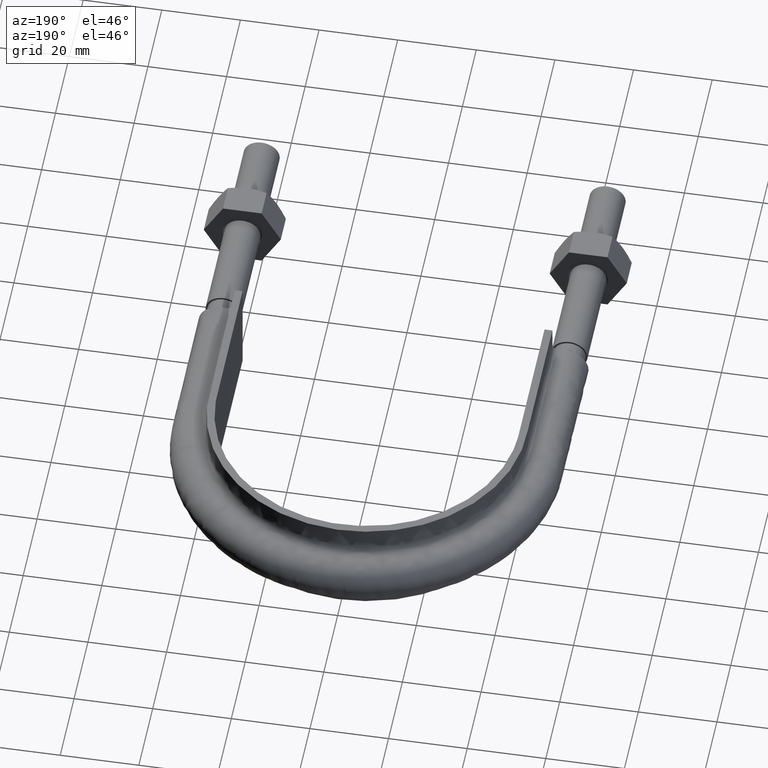
[diagram: clean part render]
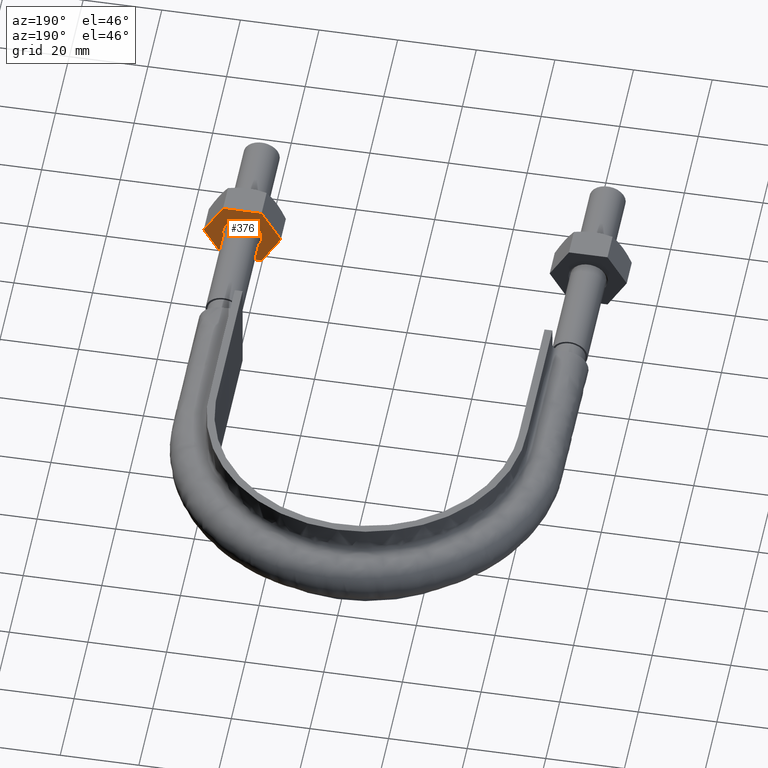
[diagram: same view with one face highlighted and labeled with its STEP entity id]
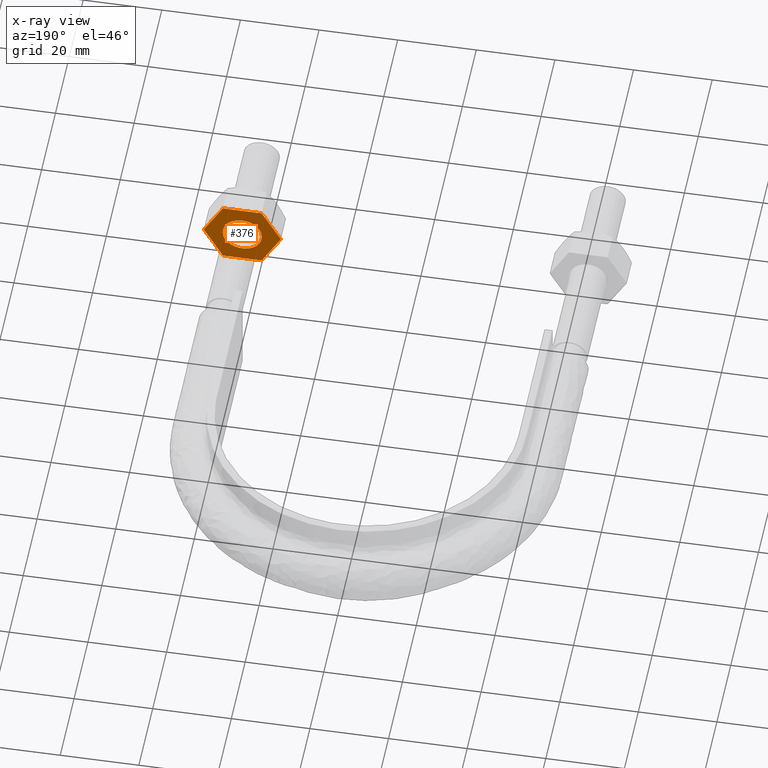
[diagram: x-ray of the same camera — body ghosted, the highlighted face saturated]
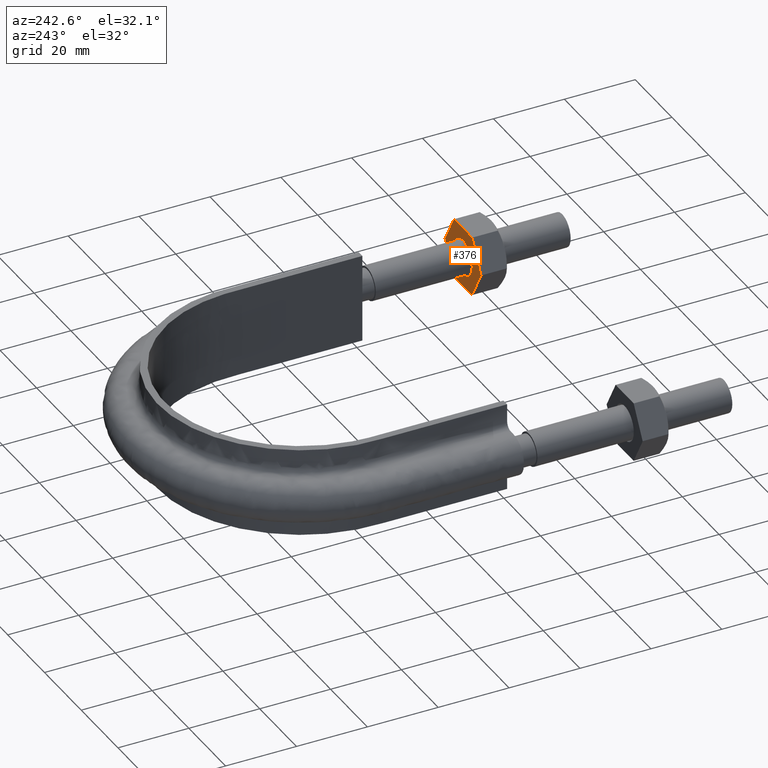
[diagram: same view with one face highlighted and labeled with its STEP entity id]
A machine part, auxiliary view. The second image highlights one B-rep face of the part: STEP entity #376.
The next image is the same camera in x-ray: the body ghosted, the highlighted face saturated — about 0% of this face is hidden behind the body in this view.
A second angle (auxiliary view) of the same face is appended — the face is thin or edge-on in the first view.
In plain terms, the highlighted planar face has unit normal (-0, -1, -0).
Its self-contained STEP definition (entity closure, byte-faithful):
#376 = ADVANCED_FACE( '', ( #530, #531 ), #532, .F. );
#530 = FACE_OUTER_BOUND( '', #1529, .T. );
#531 = FACE_BOUND( '', #1530, .T. );
#532 = PLANE( '', #1531 );
#1529 = EDGE_LOOP( '', ( #1980, #1981, #1982, #1983, #1984, #1985, #1986, #1987, #1988, #1989, #1990, #1991 ) );
#1530 = EDGE_LOOP( '', ( #1992 ) );
#1531 = AXIS2_PLACEMENT_3D( '', #1993, #1994, #1995 );
#1980 = ORIENTED_EDGE( '', *, *, #2231, .T. );
#1981 = ORIENTED_EDGE( '', *, *, #2232, .T. );
#1982 = ORIENTED_EDGE( '', *, *, #2233, .T. );
#1983 = ORIENTED_EDGE( '', *, *, #2217, .T. );
#1984 = ORIENTED_EDGE( '', *, *, #2234, .T. );
#1985 = ORIENTED_EDGE( '', *, *, #2225, .T. );
#1986 = ORIENTED_EDGE( '', *, *, #2221, .T. );
#1987 = ORIENTED_EDGE( '', *, *, #2235, .T. );
#1988 = ORIENTED_EDGE( '', *, *, #2236, .T. );
#1989 = ORIENTED_EDGE( '', *, *, #2237, .T. );
#1990 = ORIENTED_EDGE( '', *, *, #2238, .T. );
#1991 = ORIENTED_EDGE( '', *, *, #2239, .T. );
#1992 = ORIENTED_EDGE( '', *, *, #2229, .F. );
#1993 = CARTESIAN_POINT( '', ( 48.9000000000000, 28.0000000000000, 8.48704895708750 ) );
#1994 = DIRECTION( '', ( -2.44921270764475E-016, -1.00000000000000, -6.12303176911189E-017 ) );
#1995 = DIRECTION( '', ( -1.00000000000000, 2.44921270764475E-016, 0.000000000000000 ) );
#2217 = EDGE_CURVE( '', #2439, #2437, #2440, .T. );
#2221 = EDGE_CURVE( '', #2447, #2445, #2448, .F. );
#2225 = EDGE_CURVE( '', #2454, #2447, #2455, .T. );
#2229 = EDGE_CURVE( '', #2460, #2460, #2461, .F. );
#2231 = EDGE_CURVE( '', #2464, #2465, #2466, .F. );
#2232 = EDGE_CURVE( '', #2465, #2467, #2468, .T. );
#2233 = EDGE_CURVE( '', #2467, #2439, #2469, .F. );
#2234 = EDGE_CURVE( '', #2437, #2454, #2470, .F. );
#2235 = EDGE_CURVE( '', #2445, #2471, #2472, .T. );
#2236 = EDGE_CURVE( '', #2471, #2473, #2474, .F. );
#2237 = EDGE_CURVE( '', #2473, #2475, #2476, .T. );
#2238 = EDGE_CURVE( '', #2475, #2477, #2478, .F. );
#2239 = EDGE_CURVE( '', #2477, #2464, #2479, .T. );
#2437 = VERTEX_POINT( '', #3039 );
#2439 = VERTEX_POINT( '', #3042 );
#2440 = LINE( '', #3043, #3044 );
#2445 = VERTEX_POINT( '', #3050 );
#2447 = VERTEX_POINT( '', #3053 );
#2448 = CIRCLE( '', #3054, 9.80000000000000 );
#2454 = VERTEX_POINT( '', #3071 );
#2455 = LINE( '', #3072, #3073 );
#2460 = VERTEX_POINT( '', #3084 );
#2461 = CIRCLE( '', #3085, 5.00000000000000 );
#2464 = VERTEX_POINT( '', #3088 );
#2465 = VERTEX_POINT( '', #3089 );
#2466 = CIRCLE( '', #3090, 9.80000000000000 );
#2467 = VERTEX_POINT( '', #3091 );
#2468 = LINE( '', #3092, #3093 );
#2469 = CIRCLE( '', #3094, 9.80000000000000 );
#2470 = CIRCLE( '', #3095, 9.80000000000000 );
#2471 = VERTEX_POINT( '', #3096 );
#2472 = LINE( '', #3097, #3098 );
#2473 = VERTEX_POINT( '', #3099 );
#2474 = CIRCLE( '', #3100, 9.80000000000000 );
#2475 = VERTEX_POINT( '', #3101 );
#2476 = LINE( '', #3102, #3103 );
#2477 = VERTEX_POINT( '', #3104 );
#2478 = CIRCLE( '', #3105, 9.80000000000000 );
#2479 = LINE( '', #3106, #3107 );
#3039 = CARTESIAN_POINT( '', ( 39.1225006406971, 28.0000000000000, -8.49999999999999 ) );
#3042 = CARTESIAN_POINT( '', ( 48.8774993593029, 28.0000000000000, -8.49999999999999 ) );
#3043 = CARTESIAN_POINT( '', ( 48.9000000000000, 28.0000000000000, -8.49999999999999 ) );
#3044 = VECTOR( '', #3335, 1000.00000000000 );
#3050 = CARTESIAN_POINT( '', ( 34.2000343881808, 28.0000000000000, 0.0259616479013135 ) );
#3053 = CARTESIAN_POINT( '', ( 34.2000343881808, 28.0000000000000, -0.0259616479013455 ) );
#3054 = AXIS2_PLACEMENT_3D( '', #3341, #3342, #3343 );
#3071 = CARTESIAN_POINT( '', ( 39.0775337474837, 28.0000000000000, -8.47403835209863 ) );
#3072 = CARTESIAN_POINT( '', ( 34.1887840678323, 28.0000000000000, -0.00647552145623814 ) );
#3073 = VECTOR( '', #3345, 1000.00000000000 );
#3084 = CARTESIAN_POINT( '', ( 49.0000000000000, 28.0000000000000, 3.71436822271809E-015 ) );
#3085 = AXIS2_PLACEMENT_3D( '', #3350, #3351, #3352 );
#3088 = CARTESIAN_POINT( '', ( 53.7999656118192, 28.0000000000000, 0.0259616479013590 ) );
#3089 = CARTESIAN_POINT( '', ( 53.7999656118192, 28.0000000000000, -0.0259616479014913 ) );
#3090 = AXIS2_PLACEMENT_3D( '', #3356, #3357, #3358 );
#3091 = CARTESIAN_POINT( '', ( 48.9224662525164, 28.0000000000000, -8.47403835209856 ) );
#3092 = CARTESIAN_POINT( '', ( 56.2612159321678, 28.0000000000000, 4.23704895708748 ) );
#3093 = VECTOR( '', #3359, 1000.00000000000 );
#3094 = AXIS2_PLACEMENT_3D( '', #3360, #3361, #3362 );
#3095 = AXIS2_PLACEMENT_3D( '', #3363, #3364, #3365 );
#3096 = CARTESIAN_POINT( '', ( 39.0775337474838, 28.0000000000000, 8.47403835209866 ) );
#3097 = CARTESIAN_POINT( '', ( 41.5387840678323, 28.0000000000000, 12.7370489570875 ) );
#3098 = VECTOR( '', #3366, 1000.00000000000 );
#3099 = CARTESIAN_POINT( '', ( 39.1225006406971, 28.0000000000000, 8.50000000000000 ) );
#3100 = AXIS2_PLACEMENT_3D( '', #3367, #3368, #3369 );
#3101 = CARTESIAN_POINT( '', ( 48.8774993593029, 28.0000000000000, 8.50000000000000 ) );
#3102 = CARTESIAN_POINT( '', ( 48.9000000000000, 28.0000000000000, 8.50000000000000 ) );
#3103 = VECTOR( '', #3370, 1000.00000000000 );
#3104 = CARTESIAN_POINT( '', ( 48.9224662525163, 28.0000000000000, 8.47403835209863 ) );
#3105 = AXIS2_PLACEMENT_3D( '', #3371, #3372, #3373 );
#3106 = CARTESIAN_POINT( '', ( 48.9112159321677, 28.0000000000000, 8.49352447854374 ) );
#3107 = VECTOR( '', #3374, 1000.00000000000 );
#3335 = DIRECTION( '', ( -1.00000000000000, 2.44921270764475E-016, 2.17945380688007E-032 ) );
#3341 = CARTESIAN_POINT( '', ( 44.0000000000000, 28.0000000000000, 3.71436822271809E-015 ) );
#3342 = DIRECTION( '', ( -2.44921270764475E-016, -1.00000000000000, -6.12303176911189E-017 ) );
#3343 = DIRECTION( '', ( 1.00000000000000, -2.44921270764475E-016, 0.000000000000000 ) );
#3345 = DIRECTION( '', ( -0.500000000000000, 6.94336247799368E-017, 0.866025403784439 ) );
#3350 = CARTESIAN_POINT( '', ( 44.0000000000000, 28.0000000000000, 3.71436822271809E-015 ) );
#3351 = DIRECTION( '', ( -2.44921270764475E-016, -1.00000000000000, -6.12303176911189E-017 ) );
#3352 = DIRECTION( '', ( 1.00000000000000, -2.44921270764475E-016, 0.000000000000000 ) );
#3356 = CARTESIAN_POINT( '', ( 44.0000000000000, 28.0000000000000, 3.71436822271809E-015 ) );
#3357 = DIRECTION( '', ( -2.44921270764475E-016, -1.00000000000000, -6.12303176911189E-017 ) );
#3358 = DIRECTION( '', ( 1.00000000000000, -2.44921270764475E-016, 0.000000000000000 ) );
#3359 = DIRECTION( '', ( -0.500000000000000, 1.75487645984538E-016, -0.866025403784439 ) );
#3360 = CARTESIAN_POINT( '', ( 44.0000000000000, 28.0000000000000, 3.71436822271809E-015 ) );
#3361 = DIRECTION( '', ( -2.44921270764475E-016, -1.00000000000000, -6.12303176911189E-017 ) );
#3362 = DIRECTION( '', ( 1.00000000000000, -2.44921270764475E-016, 0.000000000000000 ) );
#3363 = CARTESIAN_POINT( '', ( 44.0000000000000, 28.0000000000000, 3.71436822271809E-015 ) );
#3364 = DIRECTION( '', ( -2.44921270764475E-016, -1.00000000000000, -6.12303176911189E-017 ) );
#3365 = DIRECTION( '', ( 1.00000000000000, -2.44921270764475E-016, 0.000000000000000 ) );
#3366 = DIRECTION( '', ( 0.500000000000000, -1.75487645984538E-016, 0.866025403784439 ) );
#3367 = CARTESIAN_POINT( '', ( 44.0000000000000, 28.0000000000000, 3.71436822271809E-015 ) );
#3368 = DIRECTION( '', ( -2.44921270764475E-016, -1.00000000000000, -6.12303176911189E-017 ) );
#3369 = DIRECTION( '', ( 1.00000000000000, -2.44921270764475E-016, 0.000000000000000 ) );
#3370 = DIRECTION( '', ( 1.00000000000000, -2.44921270764475E-016, 1.11022302462516E-016 ) );
#3371 = CARTESIAN_POINT( '', ( 44.0000000000000, 28.0000000000000, 3.71436822271809E-015 ) );
#3372 = DIRECTION( '', ( -2.44921270764475E-016, -1.00000000000000, -6.12303176911189E-017 ) );
#3373 = DIRECTION( '', ( 1.00000000000000, -2.44921270764475E-016, 0.000000000000000 ) );
#3374 = DIRECTION( '', ( 0.500000000000000, -6.94336247799367E-017, -0.866025403784439 ) );